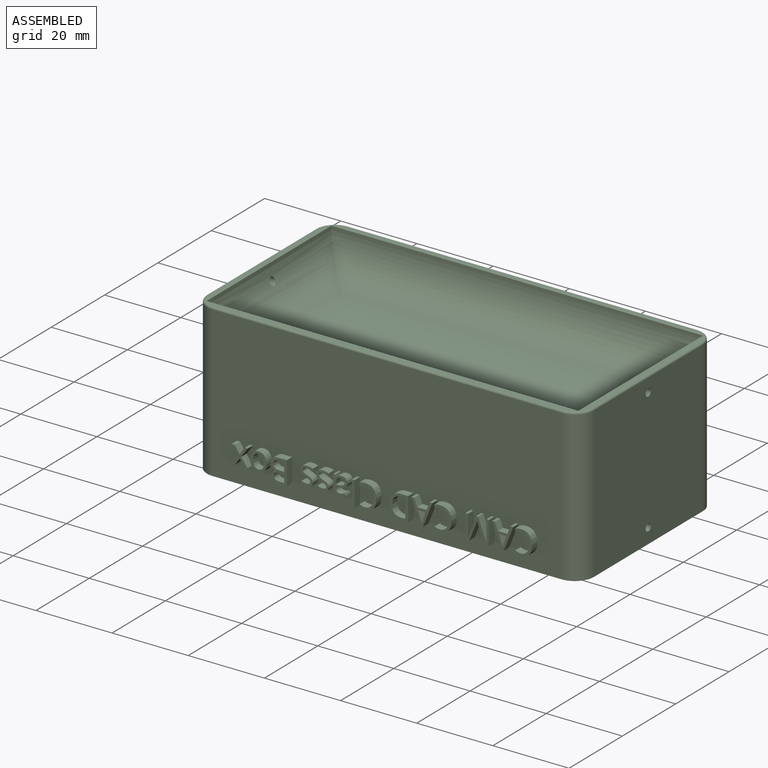
[diagram: assembled view]
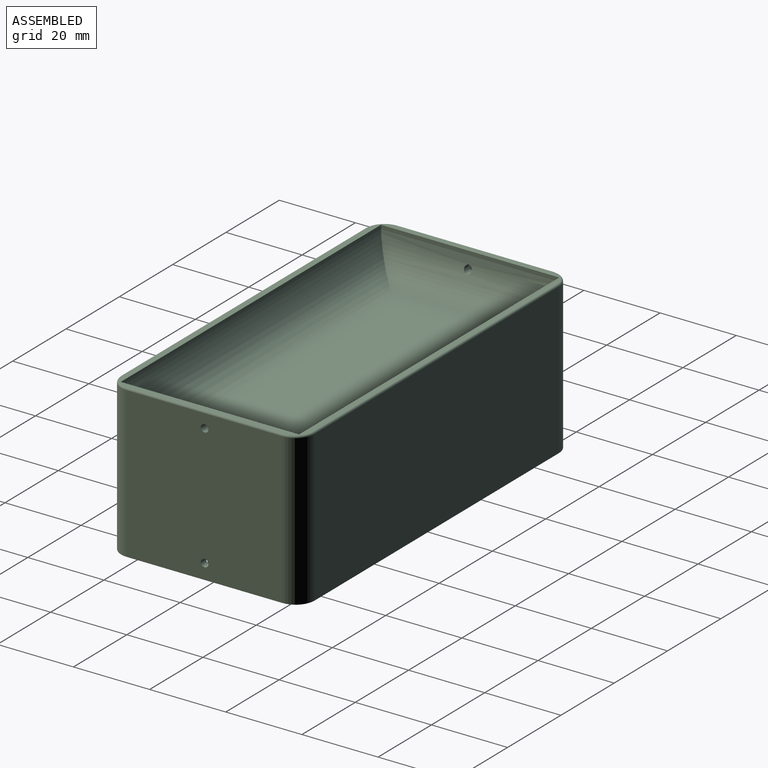
[diagram: assembled view, second angle]
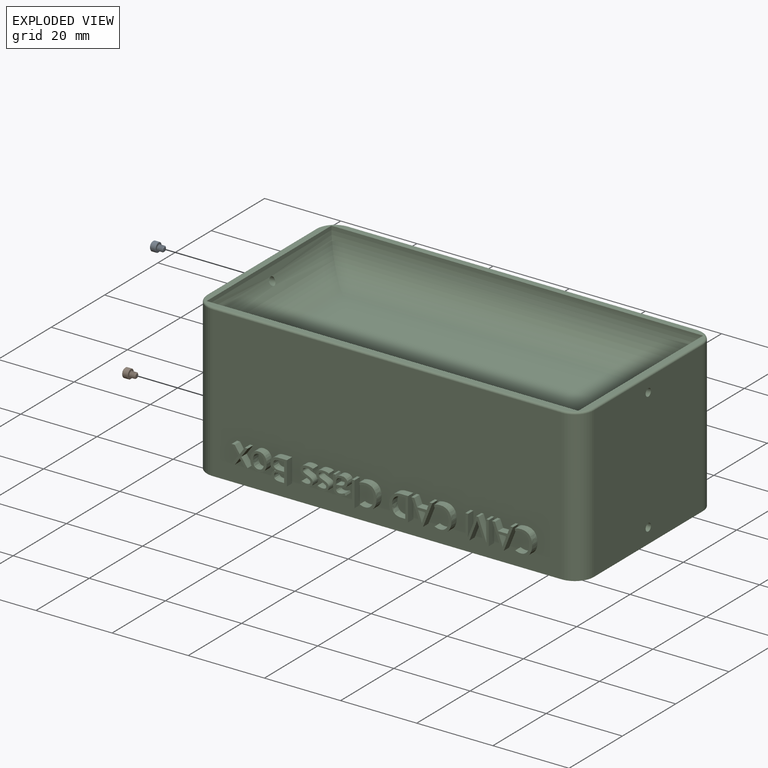
[diagram: exploded view]
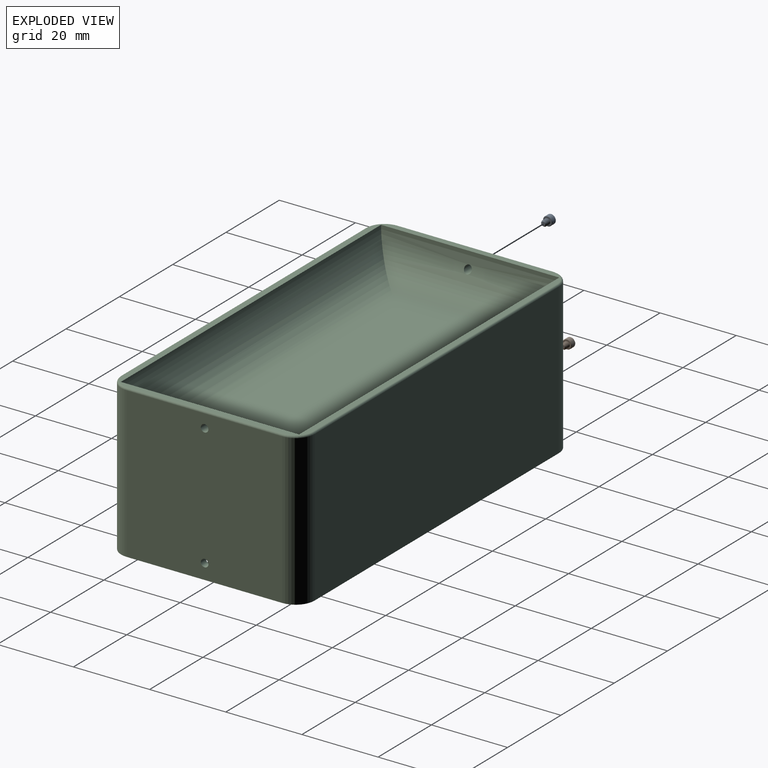
[diagram: exploded view, second angle]
ASSEMBLY  parts=3 mates=4
PART A: 24 faces, bbox 2.7x3.5x2.7 mm
  f0: cylinder r=0.76mm len=1.52mm, axis (0,-1,0), area 0.8mm2, adj f2,f4,f5,f6
  f1: plane 1.05x1.05mm, normal (0,-1,0), area 0.9mm2, adj f2
  f2: cone r=0.52mm half-angle=45deg, axis (0,1,0), area 0.7mm2, adj f0,f1,f3,f4,f5
  f3: cylinder r=0.56mm len=1.56mm, axis (0,1,0), area 0.7mm2, adj f2,f4,f5,f6
  f4: bspline ~1.76x1.76mm, area 4.5mm2, adj f0,f2,f3,f6
  f5: bspline ~1.87x1.76mm, area 4.5mm2, adj f0,f2,f3,f6
  f6: plane 2.41x2.41mm, normal (0,-1,0), area 2.7mm2, adj f0,f3,f4,f5,f23
  f7: cylinder r=1.22mm len=2.44mm, axis (0,-1,0), area 9.9mm2, adj f22,f23
  f8: plane 2.13x2.13mm, normal (0,1,0), area 1.9mm2, adj f9,f10,f11,f12,f13,f14,f22
  f9: cone r=0.73mm half-angle=45deg, axis (0,1,0), area 0mm2, adj f8,f16
  f10: cone r=0.73mm half-angle=45deg, axis (0,1,0), area 0mm2, adj f8,f17
  f11: cone r=0.73mm half-angle=45deg, axis (0,1,0), area 0mm2, adj f8,f18
  f12: cone r=0.73mm half-angle=45deg, axis (0,1,0), area 0mm2, adj f8,f19
  f13: cone r=0.73mm half-angle=45deg, axis (0,1,0), area 0mm2, adj f8,f20
  f14: cone r=0.73mm half-angle=45deg, axis (0,1,0), area 0mm2, adj f8,f21
  f15: plane 1.47x1.27mm, normal (0,1,0), area 1.4mm2, adj f16,f17,f18,f19,f20,f21
  f16: plane 1.23x0.91mm, normal (-0.5,0,-0.87), area 0.7mm2, adj f9,f15,f17,f21
  f17: plane 1.23x1.01mm, normal (-1,0,0), area 0.7mm2, adj f10,f15,f16,f18
  f18: plane 1.23x0.91mm, normal (-0.5,0,0.87), area 0.7mm2, adj f11,f15,f17,f19
  f19: plane 1.23x0.91mm, normal (0.5,0,0.87), area 0.7mm2, adj f12,f15,f18,f20
  f20: plane 1.23x1.01mm, normal (1,0,0), area 0.7mm2, adj f13,f15,f19,f21
  f21: plane 1.23x0.91mm, normal (0.5,0,-0.87), area 0.7mm2, adj f14,f15,f16,f20
  f22: cone r=1.07mm half-angle=45deg, axis (0,-1,0), area 1.5mm2, adj f7,f8
  f23: cone r=1.22mm half-angle=45deg, axis (0,1,0), area 0.8mm2, adj f6,f7
PART B: same geometry as A
PART C: 300 faces, bbox 102.4x53.2x40 mm
  f0: plane 91.6x39.5mm, normal (0,-1,0), area 3444.8mm2, adj f1,f21,f24,f29,f30,f31,f32,f33
  f1: plane 101.6x50.8mm, normal (0,0,-1), area 593.6mm2, adj f0,f2,f3,f4,f8,f9,f10,f11
  f2: plane 40.8x39.5mm, normal (1,0,0), area 1605.3mm2, adj f1,f21,f22,f289,f291,f295
  f3: plane 91.6x39.5mm, normal (0,1,0), area 3618.2mm2, adj f1,f22,f23,f299
  f4: plane 40.8x39.5mm, normal (-1,0,0), area 1605.3mm2, adj f1,f23,f24,f288,f290,f296
  f5: plane 100.6x49.8mm, normal (0,0,1), area 424.8mm2, adj f25,f26,f27,f28,f292,f293,f294,f295
  f6: plane 77.6x26.8mm, normal (0,0,1), area 2079.7mm2, adj f25,f26,f27,f28
  f7: plane 92.6x36.8mm, normal (0,0,-1), area 3407.7mm2, adj f9,f15,f16,f20
  f8: plane 87.6x23mm, normal (0,1,0), area 2014.8mm2, adj f1,f12,f14,f15
  f9: plane 36.8x28mm, normal (-1,0,0), area 1027.3mm2, adj f1,f7,f12,f13,f291
  f10: plane 87.6x23mm, normal (0,-1,0), area 2014.8mm2, adj f1,f13,f16,f17
  f11: plane 36.8x23mm, normal (1,0,0), area 843.3mm2, adj f1,f14,f17,f20,f290
  f12: cylinder r=5mm len=28mm, axis (0,0,-1), area 205.6mm2, adj f1,f8,f9,f15
  f13: cylinder r=5mm len=28mm, axis (0,0,1), area 205.6mm2, adj f1,f9,f10,f16
  f14: cylinder r=5mm len=23mm, axis (0,0,1), area 180.6mm2, adj f1,f8,f11,f18
  f15: cylinder r=5mm len=92.6mm, axis (1,0,0), area 713mm2, adj f7,f8,f12,f18
  f16: cylinder r=5mm len=92.6mm, axis (-1,0,0), area 713mm2, adj f7,f10,f13,f19
  f17: cylinder r=5mm len=23mm, axis (0,0,-1), area 180.6mm2, adj f1,f10,f11,f19
  f18: sphere r=5mm, area 39.3mm2, adj f14,f15,f20
  f19: sphere r=5mm, area 39.3mm2, adj f16,f17,f20
  f20: cylinder r=5mm len=36.8mm, axis (0,-1,0), area 289mm2, adj f7,f11,f18,f19
  f21: cylinder r=5mm len=39.5mm, axis (0,0,1), area 310.2mm2, adj f0,f1,f2,f293
  f22: cylinder r=5mm len=39.5mm, axis (0,0,-1), area 310.2mm2, adj f1,f2,f3,f297
  f23: cylinder r=5mm len=39.5mm, axis (0,0,1), area 310.2mm2, adj f1,f3,f4,f298
  f24: cylinder r=5mm len=39.5mm, axis (0,0,-1), area 310.2mm2, adj f0,f1,f4,f294
  f25: cylinder r=10mm len=97.6mm, axis (-1,0,0), area 1418.9mm2, adj f5,f6,f26,f27
  f26: cylinder r=10mm len=46.8mm, axis (0,-1,0), area 617.5mm2, adj f5,f6,f25,f28,f289
  f27: cylinder r=10mm len=46.8mm, axis (0,1,0), area 617.5mm2, adj f5,f6,f25,f28,f288
  f28: cylinder r=10mm len=97.6mm, axis (1,0,0), area 1418.9mm2, adj f5,f6,f26,f27
  f29: extruded ~2x1.62mm, area 3.6mm2, adj f0,f30,f43,f44
  f30: extruded ~2x1.42mm, area 2.9mm2, adj f0,f29,f31,f44
  f31: plane 2x0.62mm, normal (-0.9,0,0.44), area 1.4mm2, adj f0,f30,f32,f44
  f32: extruded ~2x1.72mm, area 3.5mm2, adj f0,f31,f33,f44
  f33: extruded ~2x1.6mm, area 3.3mm2, adj f0,f32,f34,f44
  f34: extruded ~2x1.12mm, area 3.1mm2, adj f0,f33,f35,f44
  f35: extruded ~2x1.69mm, area 3.5mm2, adj f0,f34,f36,f44
  f36: extruded ~2.38x2mm, area 5.1mm2, adj f0,f35,f37,f44
  f37: extruded ~2.13x2mm, area 4.7mm2, adj f0,f36,f38,f44
  f38: extruded ~2x1.6mm, area 3.3mm2, adj f0,f37,f39,f44
  f39: plane 2x0.64mm, normal (-1,0,0), area 1.3mm2, adj f0,f38,f40,f44
  f40: extruded ~2x1.49mm, area 3mm2, adj f0,f39,f41,f44
  f41: extruded ~2x1.64mm, area 3.7mm2, adj f0,f40,f42,f44
  f42: extruded ~2x1.89mm, area 4mm2, adj f0,f41,f43,f44
  f43: extruded ~2x1.88mm, area 4mm2, adj f0,f29,f42,f44
  f44: plane 6.41x4.72mm, normal (0,-1,0), area 8.5mm2, adj f29,f30,f31,f32,f33,f34,f35,f36
  f45: plane 2x1.93mm, normal (0.94,0,0.35), area 4.1mm2, adj f46,f57,f58,f59
  f46: plane 2.02x2mm, normal (0,0,-1), area 4mm2, adj f45,f47,f58,f59
  f47: plane 2x1.93mm, normal (-0.94,0,0.35), area 4.1mm2, adj f46,f48,f58,f59
  f48: extruded ~2x0.9mm, area 1.9mm2, adj f47,f57,f58,f59
  f49: plane 2x1.98mm, normal (0.93,0,0.36), area 4.3mm2, adj f0,f50,f56,f58
  f50: plane 2x0.75mm, normal (0,0,1), area 1.5mm2, adj f0,f49,f51,f58
  f51: plane 6.27x2.45mm, normal (-0.93,0,-0.36), area 13.5mm2, adj f0,f50,f52,f58
  f52: plane 2x0.61mm, normal (0,0,-1), area 1.2mm2, adj f0,f51,f53,f58
  f53: plane 6.27x2.47mm, normal (0.93,0,-0.37), area 13.5mm2, adj f0,f52,f54,f58
  f54: plane 2x0.73mm, normal (0,0,1), area 1.5mm2, adj f0,f53,f55,f58
  f55: plane 2x1.98mm, normal (-0.93,0,0.36), area 4.3mm2, adj f0,f54,f56,f58
  f56: plane 2.5x2mm, normal (0,0,1), area 5mm2, adj f0,f49,f55,f58
  f57: extruded ~2x0.9mm, area 1.9mm2, adj f45,f48,f58,f59
  f58: plane 6.27x5.53mm, normal (0,-1,0), area 10mm2, adj f45,f46,f47,f48,f49,f50,f51,f52
  f59: plane 2.83x2.02mm, normal (0,-1,0), area 2.7mm2, adj f45,f46,f47,f48,f57
  f60: plane 5.53x2.12mm, normal (0.93,0,0.36), area 11.8mm2, adj f0,f61,f77,f78
  f61: plane 2x0.58mm, normal (0,0,1), area 1.2mm2, adj f0,f60,f62,f78
  f62: plane 5.52x2.13mm, normal (-0.93,0,0.36), area 11.8mm2, adj f0,f61,f63,f78
  f63: plane 2x0.03mm, normal (0,0,1), area 0.1mm2, adj f0,f62,f64,f78
  f64: extruded ~2x1.5mm, area 3mm2, adj f0,f63,f65,f78
  f65: plane 4.02x2mm, normal (1,0,0), area 8mm2, adj f0,f64,f66,f78
  f66: plane 2x0.73mm, normal (0,0,1), area 1.5mm2, adj f0,f65,f67,f78
  f67: plane 6.24x2mm, normal (-1,0,0), area 12.5mm2, adj f0,f66,f68,f78
  f68: plane 2x1.08mm, normal (0,0,-1), area 2.2mm2, adj f0,f67,f69,f78
  f69: plane 5.15x2mm, normal (0.93,0,-0.36), area 11mm2, adj f0,f68,f70,f78
  f70: plane 2x0.03mm, normal (0,0,-1), area 0.1mm2, adj f0,f69,f71,f78
  f71: plane 5.15x2mm, normal (-0.93,0,-0.36), area 11mm2, adj f0,f70,f72,f78
  f72: plane 2x1.09mm, normal (0,0,-1), area 2.2mm2, adj f0,f71,f73,f78
  f73: plane 6.24x2mm, normal (1,0,0), area 12.5mm2, adj f0,f72,f74,f78
  f74: plane 2x0.67mm, normal (0,0,1), area 1.3mm2, adj f0,f73,f75,f78
  f75: plane 3.97x2mm, normal (-1,0,0), area 7.9mm2, adj f0,f74,f76,f78
  f76: extruded ~2x1.56mm, area 3.1mm2, adj f0,f75,f77,f78
  f77: plane 2x0.03mm, normal (0,0,1), area 0.1mm2, adj f0,f60,f76,f78
  f78: plane 6.24x6.18mm, normal (0,-1,0), area 16.6mm2, adj f60,f61,f62,f63,f64,f65,f66,f67
  f79: extruded ~2x1.62mm, area 3.6mm2, adj f0,f80,f93,f94
  f80: extruded ~2x1.42mm, area 2.9mm2, adj f0,f79,f81,f94
  f81: plane 2x0.62mm, normal (-0.9,0,0.44), area 1.4mm2, adj f0,f80,f82,f94
  f82: extruded ~2x1.72mm, area 3.5mm2, adj f0,f81,f83,f94
  f83: extruded ~2x1.6mm, area 3.3mm2, adj f0,f82,f84,f94
  f84: extruded ~2x1.12mm, area 3.1mm2, adj f0,f83,f85,f94
  f85: extruded ~2x1.69mm, area 3.5mm2, adj f0,f84,f86,f94
  f86: extruded ~2.38x2mm, area 5.1mm2, adj f0,f85,f87,f94
  f87: extruded ~2.13x2mm, area 4.7mm2, adj f0,f86,f88,f94
  f88: extruded ~2x1.6mm, area 3.3mm2, adj f0,f87,f89,f94
  f89: plane 2x0.64mm, normal (-1,0,0), area 1.3mm2, adj f0,f88,f90,f94
  f90: extruded ~2x1.49mm, area 3mm2, adj f0,f89,f91,f94
  f91: extruded ~2x1.64mm, area 3.7mm2, adj f0,f90,f92,f94
  f92: extruded ~2x1.89mm, area 4mm2, adj f0,f91,f93,f94
  f93: extruded ~2x1.88mm, area 4mm2, adj f0,f79,f92,f94
  f94: plane 6.41x4.72mm, normal (0,-1,0), area 8.5mm2, adj f79,f80,f81,f82,f83,f84,f85,f86
  f95: plane 2x1.93mm, normal (0.94,0,0.35), area 4.1mm2, adj f96,f107,f108,f109
  f96: plane 2.02x2mm, normal (0,0,-1), area 4mm2, adj f95,f97,f108,f109
  f97: plane 2x1.93mm, normal (-0.94,0,0.35), area 4.1mm2, adj f96,f98,f108,f109
  f98: extruded ~2x0.9mm, area 1.9mm2, adj f97,f107,f108,f109
  f99: plane 2x1.98mm, normal (0.93,0,0.36), area 4.3mm2, adj f0,f100,f106,f108
  f100: plane 2x0.75mm, normal (0,0,1), area 1.5mm2, adj f0,f99,f101,f108
  f101: plane 6.27x2.45mm, normal (-0.93,0,-0.36), area 13.5mm2, adj f0,f100,f102,f108
  f102: plane 2x0.61mm, normal (0,0,-1), area 1.2mm2, adj f0,f101,f103,f108
  f103: plane 6.27x2.47mm, normal (0.93,0,-0.37), area 13.5mm2, adj f0,f102,f104,f108
  f104: plane 2x0.73mm, normal (0,0,1), area 1.5mm2, adj f0,f103,f105,f108
  f105: plane 2x1.98mm, normal (-0.93,0,0.36), area 4.3mm2, adj f0,f104,f106,f108
  f106: plane 2.5x2mm, normal (0,0,1), area 5mm2, adj f0,f99,f105,f108
  f107: extruded ~2x0.9mm, area 1.9mm2, adj f95,f98,f108,f109
  f108: plane 6.27x5.53mm, normal (0,-1,0), area 10mm2, adj f95,f96,f97,f98,f99,f100,f101,f102
  f109: plane 2.83x2.02mm, normal (0,-1,0), area 2.7mm2, adj f95,f96,f97,f98,f107
  f110: extruded ~2x1.84mm, area 4mm2, adj f111,f123,f124,f125
  f111: extruded ~2x1.89mm, area 4.1mm2, adj f110,f112,f124,f125
  f112: extruded ~2x1.95mm, area 4.2mm2, adj f111,f113,f124,f125
  f113: plane 2x0.88mm, normal (0,0,-1), area 1.8mm2, adj f112,f114,f124,f125
  f114: plane 4.98x2mm, normal (-1,0,0), area 10mm2, adj f113,f115,f124,f125
  f115: plane 2x1.05mm, normal (0,0,1), area 2.1mm2, adj f114,f123,f124,f125
  f116: extruded ~2.36x2mm, area 5.2mm2, adj f0,f117,f122,f124
  f117: extruded ~2.25x2mm, area 4.9mm2, adj f0,f116,f118,f124
  f118: extruded ~2.26x2mm, area 4.9mm2, adj f0,f117,f119,f124
  f119: plane 2x1.91mm, normal (0,0,-1), area 3.8mm2, adj f0,f118,f120,f124
  f120: plane 6.24x2mm, normal (1,0,0), area 12.5mm2, adj f0,f119,f121,f124
  f121: plane 2x1.73mm, normal (0,0,1), area 3.5mm2, adj f0,f120,f122,f124
  f122: extruded ~2.41x2mm, area 5.2mm2, adj f0,f116,f121,f124
  f123: extruded ~2x1.82mm, area 4mm2, adj f110,f115,f124,f125
  f124: plane 6.24x4.98mm, normal (0,-1,0), area 12.3mm2, adj f110,f111,f112,f113,f114,f115,f116,f117
  f125: plane 4.98x3.49mm, normal (0,-1,0), area 15.3mm2, adj f110,f111,f112,f113,f114,f115,f123
  f126: extruded ~2x1.62mm, area 3.6mm2, adj f0,f127,f140,f141
  f127: extruded ~2x1.42mm, area 2.9mm2, adj f0,f126,f128,f141
  f128: plane 2x0.62mm, normal (-0.9,0,0.44), area 1.4mm2, adj f0,f127,f129,f141
  f129: extruded ~2x1.72mm, area 3.5mm2, adj f0,f128,f130,f141
  f130: extruded ~2x1.6mm, area 3.3mm2, adj f0,f129,f131,f141
  f131: extruded ~2x1.12mm, area 3.1mm2, adj f0,f130,f132,f141
  f132: extruded ~2x1.69mm, area 3.5mm2, adj f0,f131,f133,f141
  f133: extruded ~2.38x2mm, area 5.1mm2, adj f0,f132,f134,f141
  f134: extruded ~2.13x2mm, area 4.7mm2, adj f0,f133,f135,f141
  f135: extruded ~2x1.6mm, area 3.3mm2, adj f0,f134,f136,f141
  f136: plane 2x0.64mm, normal (-1,0,0), area 1.3mm2, adj f0,f135,f137,f141
  f137: extruded ~2x1.49mm, area 3mm2, adj f0,f136,f138,f141
  f138: extruded ~2x1.64mm, area 3.7mm2, adj f0,f137,f139,f141
  f139: extruded ~2x1.89mm, area 4mm2, adj f0,f138,f140,f141
  f140: extruded ~2x1.88mm, area 4mm2, adj f0,f126,f139,f141
  f141: plane 6.41x4.72mm, normal (0,-1,0), area 8.5mm2, adj f126,f127,f128,f129,f130,f131,f132,f133
  f142: plane 2x0.71mm, normal (0,0,1), area 1.4mm2, adj f0,f143,f145,f146
  f143: plane 6.64x2mm, normal (-1,0,0), area 13.3mm2, adj f0,f142,f144,f146
  f144: plane 2x0.71mm, normal (0,0,-1), area 1.4mm2, adj f0,f143,f145,f146
  f145: plane 6.64x2mm, normal (1,0,0), area 13.3mm2, adj f0,f142,f144,f146
  f146: plane 6.64x0.71mm, normal (0,-1,0), area 4.7mm2, adj f142,f143,f144,f145
  f147: extruded ~2x1.04mm, area 2.3mm2, adj f148,f173,f174,f175
  f148: extruded ~2x0.65mm, area 1.4mm2, adj f147,f149,f174,f175
  f149: extruded ~2x0.59mm, area 1.3mm2, adj f148,f150,f174,f175
  f150: extruded ~2x0.72mm, area 1.7mm2, adj f149,f151,f174,f175
  f151: extruded ~2x1.22mm, area 2.5mm2, adj f150,f152,f174,f175
  f152: plane 2x0.71mm, normal (-0.04,0,1), area 1.4mm2, adj f151,f153,f174,f175
  f153: plane 2x0.42mm, normal (1,0,0), area 0.8mm2, adj f152,f173,f174,f175
  f154: plane 2x0.67mm, normal (0.98,0,0.21), area 1.4mm2, adj f0,f155,f172,f174
  f155: plane 2x0.53mm, normal (0,0,1), area 1.1mm2, adj f0,f154,f156,f174
  f156: plane 3.19x2mm, normal (-1,0,0), area 6.4mm2, adj f0,f155,f157,f174
  f157: extruded ~2x1.19mm, area 2.6mm2, adj f0,f156,f158,f174
  f158: extruded ~2x1.24mm, area 2.6mm2, adj f0,f157,f159,f174
  f159: extruded ~2x0.83mm, area 1.7mm2, adj f0,f158,f160,f174
  f160: extruded ~2x0.76mm, area 1.6mm2, adj f0,f159,f161,f174
  f161: plane 2x0.54mm, normal (0.93,0,0.37), area 1.2mm2, adj f0,f160,f162,f174
  f162: extruded ~2x1.32mm, area 2.8mm2, adj f0,f161,f163,f174
  f163: extruded ~2x0.76mm, area 1.7mm2, adj f0,f162,f164,f174
  f164: extruded ~2x0.81mm, area 1.7mm2, adj f0,f163,f165,f174
  f165: plane 2x0.29mm, normal (1,0,0), area 0.6mm2, adj f0,f164,f166,f174
  f166: plane 2x0.79mm, normal (0.03,0,-1), area 1.6mm2, adj f0,f165,f167,f174
  f167: extruded ~2.27x2mm, area 6.1mm2, adj f0,f166,f168,f174
  f168: extruded ~2x1.02mm, area 2.3mm2, adj f0,f167,f169,f174
  f169: extruded ~2x1.09mm, area 2.3mm2, adj f0,f168,f170,f174
  f170: extruded ~2x0.87mm, area 1.8mm2, adj f0,f169,f171,f174
  f171: extruded ~2x0.7mm, area 1.9mm2, adj f0,f170,f172,f174
  f172: plane 2x0.03mm, normal (0,0,1), area 0.1mm2, adj f0,f154,f171,f174
  f173: extruded ~2x1.02mm, area 2.2mm2, adj f147,f153,f174,f175
  f174: plane 4.84x3.75mm, normal (0,-1,0), area 8.6mm2, adj f147,f148,f149,f150,f151,f152,f153,f154
  f175: plane 2.3x1.8mm, normal (0,-1,0), area 3.3mm2, adj f147,f148,f149,f150,f151,f152,f153,f173
  f176: extruded ~2x1.01mm, area 2.3mm2, adj f0,f177,f200,f201
  f177: extruded ~2x0.77mm, area 1.7mm2, adj f0,f176,f178,f201
  f178: extruded ~2x1.12mm, area 2.6mm2, adj f0,f177,f179,f201
  f179: extruded ~2x0.82mm, area 1.8mm2, adj f0,f178,f180,f201
  f180: extruded ~2x0.31mm, area 0.8mm2, adj f0,f179,f181,f201
  f181: extruded ~2x0.32mm, area 0.7mm2, adj f0,f180,f182,f201
  f182: extruded ~2x0.44mm, area 1.1mm2, adj f0,f181,f183,f201
  f183: extruded ~2x0.76mm, area 1.6mm2, adj f0,f182,f184,f201
  f184: extruded ~2x1.28mm, area 2.6mm2, adj f0,f183,f185,f201
  f185: plane 2x0.58mm, normal (-0.92,0,0.4), area 1.3mm2, adj f0,f184,f186,f201
  f186: extruded ~2x1.48mm, area 3mm2, adj f0,f185,f187,f201
  f187: extruded ~2x1.28mm, area 2.7mm2, adj f0,f186,f188,f201
  f188: extruded ~2x0.9mm, area 2.1mm2, adj f0,f187,f189,f201
  f189: extruded ~2x0.55mm, area 1.1mm2, adj f0,f188,f190,f201
  f190: extruded ~2x0.41mm, area 1.2mm2, adj f0,f189,f191,f201
  f191: extruded ~2x0.93mm, area 2mm2, adj f0,f190,f192,f201
  f192: extruded ~2x0.92mm, area 2.1mm2, adj f0,f191,f193,f201
  f193: extruded ~2x0.47mm, area 1.1mm2, adj f0,f192,f194,f201
  f194: extruded ~2x0.54mm, area 1.3mm2, adj f0,f193,f195,f201
  f195: extruded ~2x0.85mm, area 1.8mm2, adj f0,f194,f196,f201
  f196: extruded ~2x0.75mm, area 1.5mm2, adj f0,f195,f197,f201
  f197: extruded ~2x0.72mm, area 1.5mm2, adj f0,f196,f198,f201
  f198: plane 2x0.66mm, normal (1,0,0), area 1.3mm2, adj f0,f197,f199,f201
  f199: extruded ~2x1.45mm, area 3mm2, adj f0,f198,f200,f201
  f200: extruded ~2x1.37mm, area 2.9mm2, adj f0,f176,f199,f201
  f201: plane 4.85x3.32mm, normal (0,-1,0), area 6.7mm2, adj f176,f177,f178,f179,f180,f181,f182,f183
  f202: extruded ~2x1.01mm, area 2.3mm2, adj f0,f203,f226,f227
  f203: extruded ~2x0.77mm, area 1.7mm2, adj f0,f202,f204,f227
  f204: extruded ~2x1.12mm, area 2.6mm2, adj f0,f203,f205,f227
  f205: extruded ~2x0.82mm, area 1.8mm2, adj f0,f204,f206,f227
  f206: extruded ~2x0.31mm, area 0.8mm2, adj f0,f205,f207,f227
  f207: extruded ~2x0.32mm, area 0.7mm2, adj f0,f206,f208,f227
  f208: extruded ~2x0.44mm, area 1.1mm2, adj f0,f207,f209,f227
  f209: extruded ~2x0.76mm, area 1.6mm2, adj f0,f208,f210,f227
  f210: extruded ~2x1.28mm, area 2.6mm2, adj f0,f209,f211,f227
  f211: plane 2x0.58mm, normal (-0.92,0,0.4), area 1.3mm2, adj f0,f210,f212,f227
  f212: extruded ~2x1.48mm, area 3mm2, adj f0,f211,f213,f227
  f213: extruded ~2x1.28mm, area 2.7mm2, adj f0,f212,f214,f227
  f214: extruded ~2x0.9mm, area 2.1mm2, adj f0,f213,f215,f227
  f215: extruded ~2x0.55mm, area 1.1mm2, adj f0,f214,f216,f227
  f216: extruded ~2x0.41mm, area 1.2mm2, adj f0,f215,f217,f227
  f217: extruded ~2x0.93mm, area 2mm2, adj f0,f216,f218,f227
  f218: extruded ~2x0.92mm, area 2.1mm2, adj f0,f217,f219,f227
  f219: extruded ~2x0.47mm, area 1.1mm2, adj f0,f218,f220,f227
  f220: extruded ~2x0.54mm, area 1.3mm2, adj f0,f219,f221,f227
  f221: extruded ~2x0.85mm, area 1.8mm2, adj f0,f220,f222,f227
  f222: extruded ~2x0.75mm, area 1.5mm2, adj f0,f221,f223,f227
  f223: extruded ~2x0.72mm, area 1.5mm2, adj f0,f222,f224,f227
  f224: plane 2x0.66mm, normal (1,0,0), area 1.3mm2, adj f0,f223,f225,f227
  f225: extruded ~2x1.45mm, area 3mm2, adj f0,f224,f226,f227
  f226: extruded ~2x1.37mm, area 2.9mm2, adj f0,f202,f225,f227
  f227: plane 4.85x3.32mm, normal (0,-1,0), area 6.7mm2, adj f202,f203,f204,f205,f206,f207,f208,f209
  f228: plane 2.34x2mm, normal (-1,0,0), area 4.7mm2, adj f229,f252,f253,f254
  f229: plane 2x1.24mm, normal (0,0,1), area 2.5mm2, adj f228,f230,f253,f254
  f230: extruded ~2x1.19mm, area 2.5mm2, adj f229,f231,f253,f254
  f231: extruded ~2x0.85mm, area 2mm2, adj f230,f232,f253,f254
  f232: extruded ~2x0.92mm, area 2.1mm2, adj f231,f233,f253,f254
  f233: extruded ~2x1.14mm, area 2.4mm2, adj f232,f252,f253,f254
  f234: plane 2x1.2mm, normal (0,0,-1), area 2.4mm2, adj f235,f250,f253,f255
  f235: plane 2.04x2mm, normal (-1,0,0), area 4.1mm2, adj f234,f236,f253,f255
  f236: plane 2x1.07mm, normal (0,0,1), area 2.1mm2, adj f235,f237,f253,f255
  f237: extruded ~2x1.2mm, area 2.5mm2, adj f236,f238,f253,f255
  f238: extruded ~2x0.76mm, area 1.8mm2, adj f237,f239,f253,f255
  f239: extruded ~2x0.81mm, area 1.8mm2, adj f238,f250,f253,f255
  f240: plane 2x1.76mm, normal (0,0,-1), area 3.5mm2, adj f0,f241,f251,f253
  f241: plane 6.24x2mm, normal (1,0,0), area 12.5mm2, adj f0,f240,f242,f253
  f242: plane 2.18x2mm, normal (0,0,1), area 4.4mm2, adj f0,f241,f243,f253
  f243: extruded ~2x1.58mm, area 3.4mm2, adj f0,f242,f244,f253
  f244: extruded ~2x1.31mm, area 2.9mm2, adj f0,f243,f245,f253
  f245: extruded ~2x1.49mm, area 4.6mm2, adj f0,f244,f246,f253
  f246: plane 2x0.04mm, normal (-1,0,0), area 0.1mm2, adj f0,f245,f247,f253
  f247: extruded ~2x0.9mm, area 2.1mm2, adj f0,f246,f248,f253
  f248: extruded ~2x0.92mm, area 2mm2, adj f0,f247,f249,f253
  f249: extruded ~2x1.17mm, area 2.7mm2, adj f0,f248,f251,f253
  f250: extruded ~2x1.11mm, area 2.3mm2, adj f234,f239,f253,f255
  f251: extruded ~2x1.8mm, area 3.7mm2, adj f0,f240,f249,f253
  f252: plane 2x1.3mm, normal (0,0,-1), area 2.6mm2, adj f228,f233,f253,f254
  f253: plane 6.24x4.32mm, normal (0,-1,0), area 13.3mm2, adj f228,f229,f230,f231,f232,f233,f234,f235
  f254: plane 2.82x2.34mm, normal (0,-1,0), area 6mm2, adj f228,f229,f230,f231,f232,f233,f252
  f255: plane 2.64x2.04mm, normal (0,-1,0), area 4.9mm2, adj f234,f235,f236,f237,f238,f239,f250
  f256: extruded ~2x1.37mm, area 2.9mm2, adj f257,f272,f273,f274
  f257: extruded ~2x1.36mm, area 2.9mm2, adj f256,f258,f273,f274
  f258: extruded ~2x1.05mm, area 2.4mm2, adj f257,f259,f273,f274
  f259: extruded ~2x1.07mm, area 2.4mm2, adj f258,f260,f273,f274
  f260: extruded ~2x1.35mm, area 2.9mm2, adj f259,f261,f273,f274
  f261: extruded ~2x1.37mm, area 2.9mm2, adj f260,f262,f273,f274
  f262: extruded ~2x1.06mm, area 2.4mm2, adj f261,f272,f273,f274
  f263: extruded ~2x1.79mm, area 3.8mm2, adj f0,f264,f271,f273
  f264: extruded ~2x1.77mm, area 3.8mm2, adj f0,f263,f265,f273
  f265: extruded ~2x1.56mm, area 3.5mm2, adj f0,f264,f266,f273
  f266: extruded ~2x1.59mm, area 3.5mm2, adj f0,f265,f267,f273
  f267: extruded ~2x1.78mm, area 3.8mm2, adj f0,f266,f268,f273
  f268: extruded ~2x1.29mm, area 2.7mm2, adj f0,f267,f269,f273
  f269: extruded ~2x0.85mm, area 2.3mm2, adj f0,f268,f270,f273
  f270: extruded ~2x1.11mm, area 2.3mm2, adj f0,f269,f271,f273
  f271: extruded ~2x1.59mm, area 3.5mm2, adj f0,f263,f270,f273
  f272: extruded ~2x1.05mm, area 2.4mm2, adj f256,f262,f273,f274
  f273: plane 4.85x4.3mm, normal (0,-1,0), area 8.4mm2, adj f256,f257,f258,f259,f260,f261,f262,f263
  f274: plane 3.65x2.83mm, normal (0,-1,0), area 8.6mm2, adj f256,f257,f258,f259,f260,f261,f262,f272
  f275: plane 2.28x2mm, normal (0.81,0,0.58), area 5.6mm2, adj f0,f276,f286,f287
  f276: plane 2.39x2mm, normal (0.81,0,-0.58), area 5.9mm2, adj f0,f275,f277,f287
  f277: plane 2x0.8mm, normal (0,0,1), area 1.6mm2, adj f0,f276,f278,f287
  f278: plane 2x1.9mm, normal (-0.82,0,0.57), area 4.6mm2, adj f0,f277,f279,f287
  f279: plane 2x1.9mm, normal (0.82,0,0.57), area 4.6mm2, adj f0,f278,f280,f287
  f280: plane 2x0.8mm, normal (0,0,1), area 1.6mm2, adj f0,f279,f281,f287
  f281: plane 2.39x2mm, normal (-0.81,0,-0.58), area 5.9mm2, adj f0,f280,f282,f287
  f282: plane 2.28x2mm, normal (-0.81,0,0.58), area 5.6mm2, adj f0,f281,f283,f287
  f283: plane 2x0.8mm, normal (0,0,-1), area 1.6mm2, adj f0,f282,f284,f287
  f284: plane 2x1.79mm, normal (0.82,0,-0.57), area 4.3mm2, adj f0,f283,f285,f287
  f285: plane 2x1.79mm, normal (-0.82,0,-0.57), area 4.3mm2, adj f0,f284,f286,f287
  f286: plane 2x0.81mm, normal (0,0,-1), area 1.6mm2, adj f0,f275,f285,f287
  f287: plane 4.68x4.24mm, normal (0,-1,0), area 6.9mm2, adj f275,f276,f277,f278,f279,f280,f281,f282
  f288: cylinder r=1mm len=3.34mm, axis (-1,0,0), area 18mm2, adj f4,f27
  f289: cylinder r=1mm len=3.34mm, axis (-1,0,0), area 18mm2, adj f2,f26
  f290: cylinder r=1mm len=2mm, axis (-1,0,0), area 12.6mm2, adj f4,f11
  f291: cylinder r=1mm len=2mm, axis (-1,0,0), area 12.6mm2, adj f2,f9
  f292: cylinder r=0.5mm len=91.6mm, axis (-1,0,0), area 71.9mm2, adj f0,f5,f293,f294
  f293: torus R=4.5mm, axis (0,0,1), area 5.9mm2, adj f5,f21,f292,f295
  f294: torus R=4.5mm, axis (0,0,1), area 5.9mm2, adj f5,f24,f292,f296
  f295: cylinder r=0.5mm len=40.8mm, axis (0,-1,0), area 32mm2, adj f2,f5,f293,f297
  f296: cylinder r=0.5mm len=40.8mm, axis (0,1,0), area 32mm2, adj f4,f5,f294,f298
  f297: torus R=4.5mm, axis (0,0,1), area 5.9mm2, adj f5,f22,f295,f299
  f298: torus R=4.5mm, axis (0,0,1), area 5.9mm2, adj f5,f23,f296,f299
  f299: cylinder r=0.5mm len=91.6mm, axis (1,0,0), area 71.9mm2, adj f3,f5,f297,f298
PLACE A rot(axis=(0.7,-0.7,0.08),170.9deg) t=(-49.21,0,36)mm
PLACE B rot(axis=(0.71,-0.71,0),180deg) t=(-49.21,0,4)mm
PLACE C at identity fixed
MATE cylindrical C.f288 <-> A.f0  axis (-1,0,0) through (-50.8,0,36)mm
MATE cylindrical C.f290 <-> B.f0  axis (-1,0,0) through (-50.8,0,4)mm
MATE planar C.f4 <-> A.f6  axis (-1,0,0) through (-50.8,0,19.75)mm
MATE planar C.f4 <-> B.f6  axis (-1,0,0) through (-50.8,0,19.75)mm
